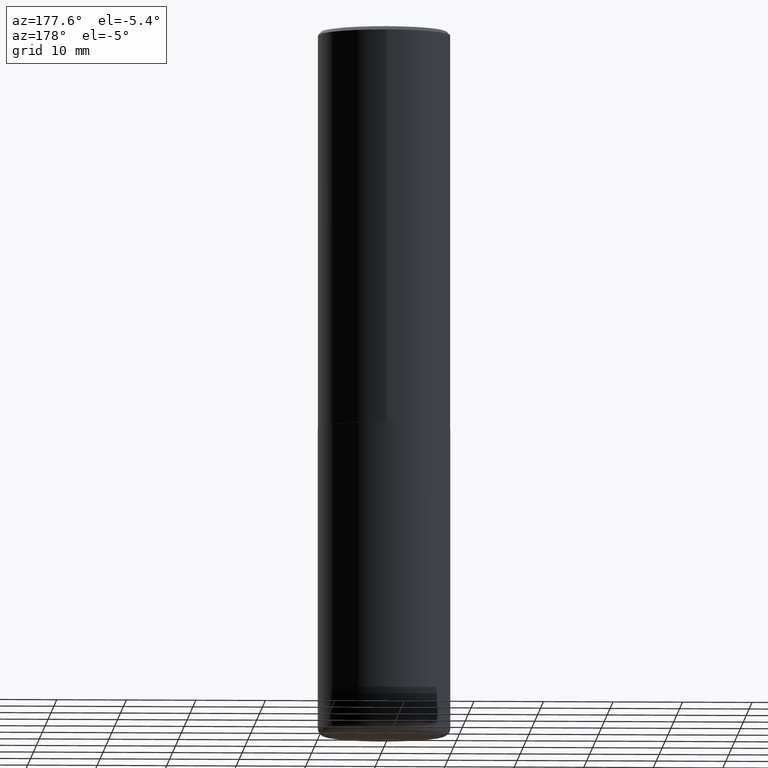
[diagram: clean part render]
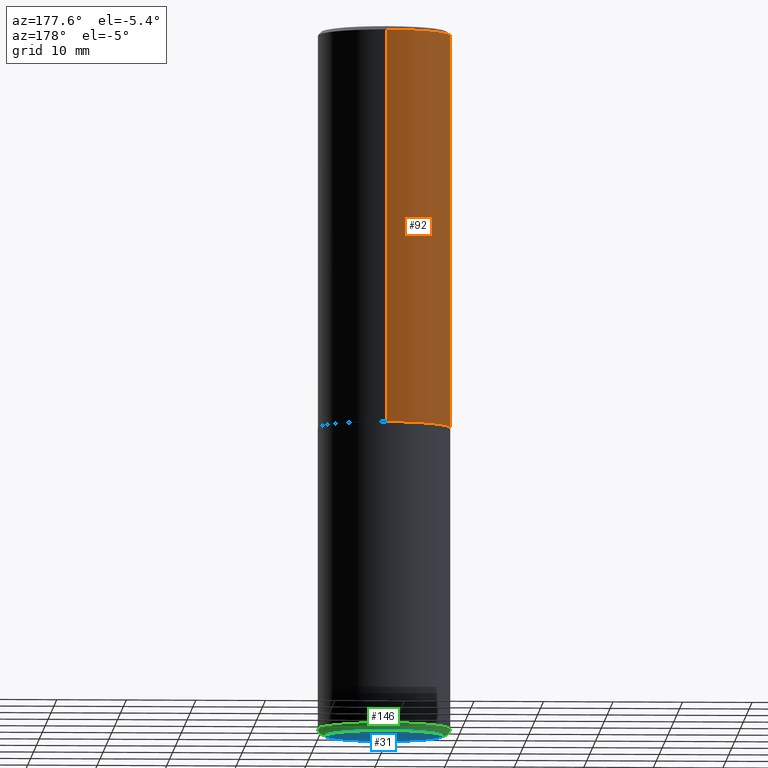
[diagram: same view with three faces highlighted in distinct colors, each labeled with its STEP entity id]
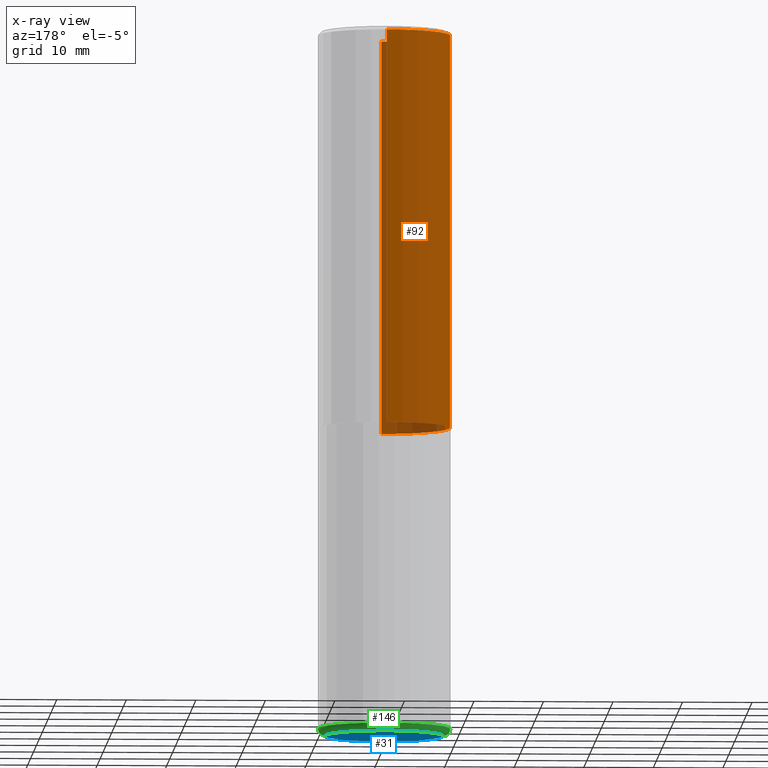
[diagram: x-ray of the same camera — body ghosted, the three highlighted faces saturated]
A machine part, auxiliary view with three faces highlighted in distinct colors.
The next image is the same camera in x-ray (body ghosted, the three faces saturated) — at least one of them is partly hidden behind the body in this view.
Their STEP definitions:

[orange] entity #92 — the highlighted cylindrical surface (partial cylindrical patch) has radius 9.525 mm, axis along (-0, 0, 1).
#24 = AXIS2_PLACEMENT_3D ( 'NONE', #27, #52, #313 ) ;
#27 = CARTESIAN_POINT ( 'NONE',  ( 5.497808090406382563E-29, -7.855279044544511212E-15, -2.248999999999999666 ) ) ;
#33 = VERTEX_POINT ( 'NONE', #258 ) ;
#49 = CARTESIAN_POINT ( 'NONE',  ( -2.618611004132297163E-15, -0.3750000000000081601, -2.248999999999998334 ) ) ;
#52 = DIRECTION ( 'NONE',  ( -2.444556732061531349E-29, 3.492787480900183539E-15, 1.000000000000000000 ) ) ;
#59 = ORIENTED_EDGE ( 'NONE', *, *, #69, .F. ) ;
#64 = LINE ( 'NONE', #358, #200 ) ;
#67 = DIRECTION ( 'NONE',  ( -6.982962677686266711E-15, -1.000000000000000000, 3.492787480900183934E-15 ) ) ;
#68 = DIRECTION ( 'NONE',  ( -2.444556732061531349E-29, 3.492787480900183539E-15, 1.000000000000000000 ) ) ;
#69 = EDGE_CURVE ( 'NONE', #33, #418, #64, .T. ) ;
#70 = DIRECTION ( 'NONE',  ( -2.444556732061531349E-29, 3.492787480900183539E-15, 1.000000000000000000 ) ) ;
#92 = ADVANCED_FACE ( 'NONE', ( #328 ), #231, .T. ) ;
#98 = DIRECTION ( 'NONE',  ( -2.444556732061531349E-29, 3.492787480900183539E-15, 1.000000000000000000 ) ) ;
#102 = CARTESIAN_POINT ( 'NONE',  ( -2.618611004132351200E-15, -0.3750000000000001665, 1.309795305337569517E-15 ) ) ;
#110 = AXIS2_PLACEMENT_3D ( 'NONE', #325, #68, #166 ) ;
#119 = CARTESIAN_POINT ( 'NONE',  ( -2.572686749164323547E-15, -0.3750000000000001110, -0.01999999999999877570 ) ) ;
#120 = ORIENTED_EDGE ( 'NONE', *, *, #391, .T. ) ;
#121 = EDGE_CURVE ( 'NONE', #418, #308, #322, .T. ) ;
#135 = LINE ( 'NONE', #102, #296 ) ;
#164 = EDGE_LOOP ( 'NONE', ( #59, #120, #344, #190 ) ) ;
#166 = DIRECTION ( 'NONE',  ( -6.982962677686265922E-15, -1.000000000000000000, 3.494488891895536035E-15 ) ) ;
#181 = DIRECTION ( 'NONE',  ( -2.444556732061531349E-29, 3.492787480900183539E-15, 1.000000000000000000 ) ) ;
#189 = VERTEX_POINT ( 'NONE', #49 ) ;
#190 = ORIENTED_EDGE ( 'NONE', *, *, #121, .F. ) ;
#200 = VECTOR ( 'NONE', #98, 39.37007874015748143 ) ;
#204 = CARTESIAN_POINT ( 'NONE',  ( 2.618611004132350411E-15, 0.3749999999999999445, -0.02000000000000139513 ) ) ;
#231 = CYLINDRICAL_SURFACE ( 'NONE', #249, 0.3750000000000001665 ) ;
#249 = AXIS2_PLACEMENT_3D ( 'NONE', #360, #70, #67 ) ;
#254 = EDGE_CURVE ( 'NONE', #189, #308, #135, .T. ) ;
#258 = CARTESIAN_POINT ( 'NONE',  ( 2.664535259100404490E-15, 0.3749999999999924505, -2.249000000000000998 ) ) ;
#276 = CIRCLE ( 'NONE', #24, 0.3750000000000002776 ) ;
#296 = VECTOR ( 'NONE', #181, 39.37007874015748143 ) ;
#308 = VERTEX_POINT ( 'NONE', #119 ) ;
#313 = DIRECTION ( 'NONE',  ( -6.982962677686266711E-15, -1.000000000000000000, 3.642463991552348591E-15 ) ) ;
#322 = CIRCLE ( 'NONE', #110, 0.3750000000000000555 ) ;
#325 = CARTESIAN_POINT ( 'NONE',  ( 4.889113464123083543E-31, -6.985574961800397105E-17, -0.02000000000000008715 ) ) ;
#328 = FACE_OUTER_BOUND ( 'NONE', #164, .T. ) ;
#344 = ORIENTED_EDGE ( 'NONE', *, *, #254, .T. ) ;
#358 = CARTESIAN_POINT ( 'NONE',  ( 2.664535259100376486E-15, 0.3750000000000001665, -1.309795305337569517E-15 ) ) ;
#360 = CARTESIAN_POINT ( 'NONE',  ( 0.000000000000000000, 0.000000000000000000, 0.000000000000000000 ) ) ;
#391 = EDGE_CURVE ( 'NONE', #33, #189, #276, .T. ) ;
#418 = VERTEX_POINT ( 'NONE', #204 ) ;

[blue] entity #31 — the highlighted planar face has unit normal (0, -0, -1).
#7 = DIRECTION ( 'NONE',  ( -1.000000000000000000, 6.982962677686265922E-15, -4.876176775795935793E-29 ) ) ;
#14 = DIRECTION ( 'NONE',  ( 1.000000000000000000, -6.982962677686265922E-15, 0.000000000000000000 ) ) ;
#31 = ADVANCED_FACE ( 'NONE', ( #132 ), #262, .T. ) ;
#60 = CIRCLE ( 'NONE', #131, 0.3350000000000000200 ) ;
#65 = AXIS2_PLACEMENT_3D ( 'NONE', #279, #84, #150 ) ;
#84 = DIRECTION ( 'NONE',  ( -2.445468806185136597E-29, 3.491481338843145583E-15, 1.000000000000000000 ) ) ;
#124 = VERTEX_POINT ( 'NONE', #294 ) ;
#126 = DIRECTION ( 'NONE',  ( 2.438088387897960049E-29, -3.491481338843145188E-15, -1.000000000000000000 ) ) ;
#131 = AXIS2_PLACEMENT_3D ( 'NONE', #203, #178, #14 ) ;
#132 = FACE_OUTER_BOUND ( 'NONE', #153, .T. ) ;
#150 = DIRECTION ( 'NONE',  ( 1.000000000000000000, -6.982962677686265922E-15, 0.000000000000000000 ) ) ;
#153 = EDGE_LOOP ( 'NONE', ( #412, #287 ) ) ;
#178 = DIRECTION ( 'NONE',  ( -2.445468806185136597E-29, 3.491481338843145583E-15, 1.000000000000000000 ) ) ;
#194 = CIRCLE ( 'NONE', #65, 0.3350000000000000200 ) ;
#203 = CARTESIAN_POINT ( 'NONE',  ( 9.781875224740546387E-29, -1.396592535537258233E-14, -4.000000000000000000 ) ) ;
#212 = EDGE_CURVE ( 'NONE', #417, #124, #60, .T. ) ;
#262 = PLANE ( 'NONE',  #388 ) ;
#279 = CARTESIAN_POINT ( 'NONE',  ( 9.781875224740546387E-29, -1.396592535537258233E-14, -4.000000000000000000 ) ) ;
#287 = ORIENTED_EDGE ( 'NONE', *, *, #299, .F. ) ;
#294 = CARTESIAN_POINT ( 'NONE',  ( -0.3350000000000000200, -1.137366901664736350E-14, -4.000000000000000000 ) ) ;
#297 = CARTESIAN_POINT ( 'NONE',  ( 9.781875224740546387E-29, -1.396592535537258233E-14, -4.000000000000000000 ) ) ;
#299 = EDGE_CURVE ( 'NONE', #124, #417, #194, .T. ) ;
#300 = CARTESIAN_POINT ( 'NONE',  ( 0.3350000000000000200, -1.630521785239748073E-14, -4.000000000000000000 ) ) ;
#388 = AXIS2_PLACEMENT_3D ( 'NONE', #297, #126, #7 ) ;
#412 = ORIENTED_EDGE ( 'NONE', *, *, #212, .F. ) ;
#417 = VERTEX_POINT ( 'NONE', #300 ) ;

[green] entity #146 — the highlighted toroidal blend (fillet) surface has major radius 8.509 mm and minor (blend) radius 1.016 mm.
#1 = EDGE_CURVE ( 'NONE', #32, #392, #309, .T. ) ;
#4 = CARTESIAN_POINT ( 'NONE',  ( 9.684056472493141327E-29, -1.382626610181885731E-14, -3.960000000000000409 ) ) ;
#9 = ORIENTED_EDGE ( 'NONE', *, *, #373, .T. ) ;
#14 = DIRECTION ( 'NONE',  ( 1.000000000000000000, -6.982962677686265922E-15, 0.000000000000000000 ) ) ;
#23 = AXIS2_PLACEMENT_3D ( 'NONE', #103, #267, #81 ) ;
#32 = VERTEX_POINT ( 'NONE', #393 ) ;
#41 = FACE_OUTER_BOUND ( 'NONE', #159, .T. ) ;
#60 = CIRCLE ( 'NONE', #131, 0.3350000000000000200 ) ;
#76 = AXIS2_PLACEMENT_3D ( 'NONE', #4, #227, #295 ) ;
#81 = DIRECTION ( 'NONE',  ( 1.000000000000000000, -6.982962677686265922E-15, 4.883557194083113462E-29 ) ) ;
#87 = DIRECTION ( 'NONE',  ( -1.000000000000000000, 7.105427357601014480E-15, 0.000000000000000000 ) ) ;
#103 = CARTESIAN_POINT ( 'NONE',  ( 9.684056472493140206E-29, -1.382626610181885573E-14, -3.959999999999999964 ) ) ;
#124 = VERTEX_POINT ( 'NONE', #294 ) ;
#131 = AXIS2_PLACEMENT_3D ( 'NONE', #203, #178, #14 ) ;
#138 = TOROIDAL_SURFACE ( 'NONE', #23, 0.3350000000000000200, 0.04000000000000001471 ) ;
#146 = ADVANCED_FACE ( 'NONE', ( #41 ), #138, .T. ) ;
#159 = EDGE_LOOP ( 'NONE', ( #347, #9, #349, #272 ) ) ;
#178 = DIRECTION ( 'NONE',  ( -2.445468806185136597E-29, 3.491481338843145583E-15, 1.000000000000000000 ) ) ;
#203 = CARTESIAN_POINT ( 'NONE',  ( 9.781875224740546387E-29, -1.396592535537258233E-14, -4.000000000000000000 ) ) ;
#212 = EDGE_CURVE ( 'NONE', #417, #124, #60, .T. ) ;
#215 = AXIS2_PLACEMENT_3D ( 'NONE', #277, #408, #216 ) ;
#216 = DIRECTION ( 'NONE',  ( 1.000000000000000000, -6.982962677686275388E-15, 0.000000000000000000 ) ) ;
#219 = CARTESIAN_POINT ( 'NONE',  ( -0.3750000000000000555, -1.116173084271848161E-14, -3.960000000000000409 ) ) ;
#224 = CIRCLE ( 'NONE', #234, 0.04000000000000004940 ) ;
#227 = DIRECTION ( 'NONE',  ( -2.445468806185136597E-29, 3.491481338843145583E-15, 1.000000000000000000 ) ) ;
#234 = AXIS2_PLACEMENT_3D ( 'NONE', #339, #377, #87 ) ;
#267 = DIRECTION ( 'NONE',  ( -2.445468806185136597E-29, 3.491481338843145583E-15, 1.000000000000000000 ) ) ;
#272 = ORIENTED_EDGE ( 'NONE', *, *, #286, .F. ) ;
#277 = CARTESIAN_POINT ( 'NONE',  ( 0.3350000000000000200, -1.616555859884375414E-14, -3.959999999999999964 ) ) ;
#286 = EDGE_CURVE ( 'NONE', #417, #32, #399, .T. ) ;
#294 = CARTESIAN_POINT ( 'NONE',  ( -0.3350000000000000200, -1.137366901664736350E-14, -4.000000000000000000 ) ) ;
#295 = DIRECTION ( 'NONE',  ( 1.000000000000000000, -6.982962677686263555E-15, 0.000000000000000000 ) ) ;
#300 = CARTESIAN_POINT ( 'NONE',  ( 0.3350000000000000200, -1.630521785239748073E-14, -4.000000000000000000 ) ) ;
#309 = CIRCLE ( 'NONE', #76, 0.3749999999999999445 ) ;
#339 = CARTESIAN_POINT ( 'NONE',  ( -0.3350000000000000200, -1.144594793702251879E-14, -3.959999999999999964 ) ) ;
#347 = ORIENTED_EDGE ( 'NONE', *, *, #212, .T. ) ;
#349 = ORIENTED_EDGE ( 'NONE', *, *, #1, .F. ) ;
#373 = EDGE_CURVE ( 'NONE', #124, #392, #224, .T. ) ;
#377 = DIRECTION ( 'NONE',  ( 7.105427357601001859E-15, 1.000000000000000000, -3.491481338843145583E-15 ) ) ;
#392 = VERTEX_POINT ( 'NONE', #219 ) ;
#393 = CARTESIAN_POINT ( 'NONE',  ( 0.3750000000000000555, -1.644487710595120733E-14, -3.960000000000000409 ) ) ;
#399 = CIRCLE ( 'NONE', #215, 0.04000000000000004940 ) ;
#408 = DIRECTION ( 'NONE',  ( -6.982962677686266711E-15, -1.000000000000000000, 3.491481338843145583E-15 ) ) ;
#417 = VERTEX_POINT ( 'NONE', #300 ) ;